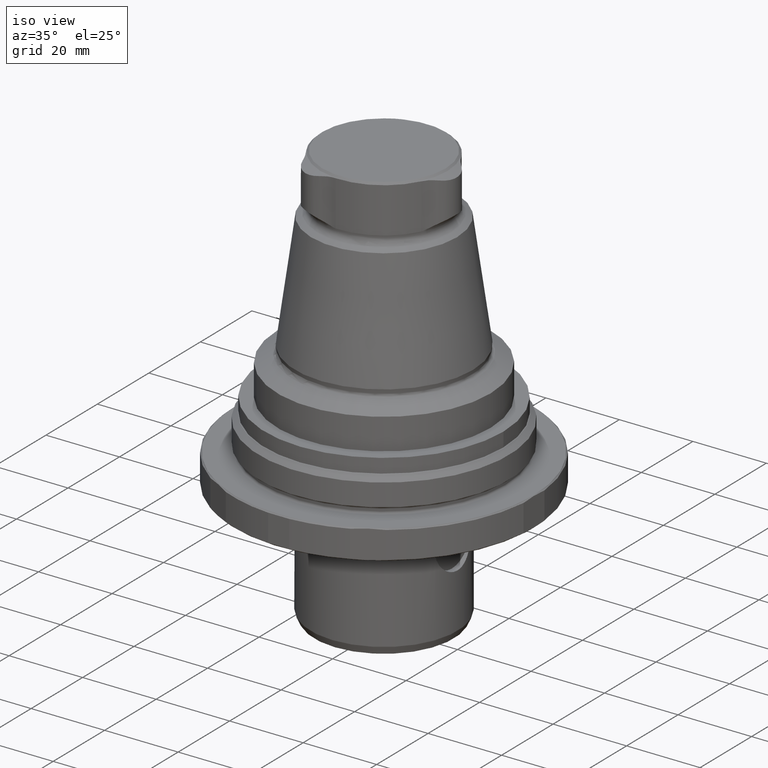
[diagram: clean part render]
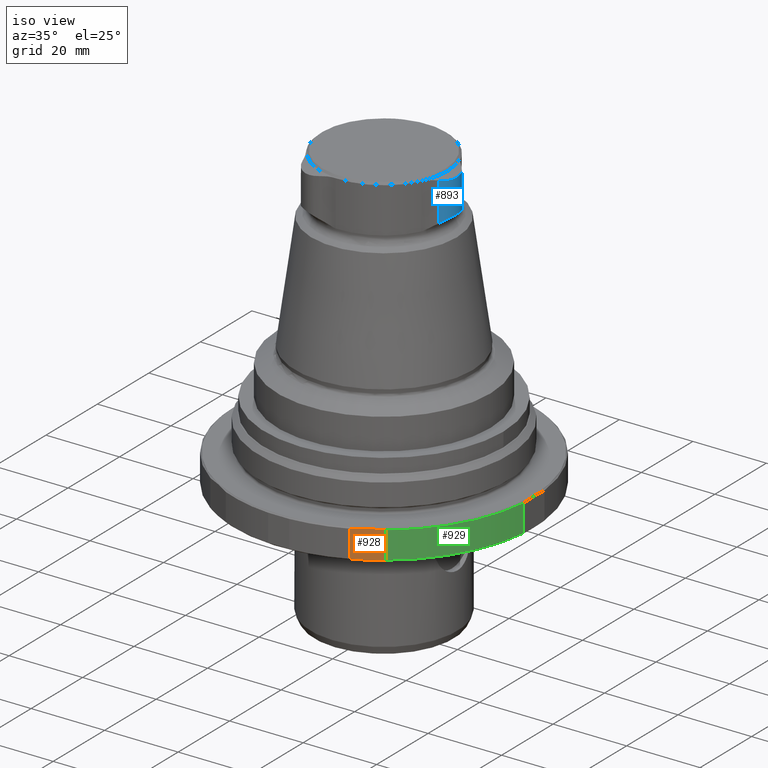
[diagram: same view with three faces highlighted in distinct colors, each labeled with its STEP entity id]
A machine part, iso view with three faces highlighted in distinct colors.
Their STEP definitions:

[orange] entity #928 — the highlighted planar face has unit normal (-0.5, 0.866, -0).
#38=LINE('',#1708,#66);
#39=LINE('',#1715,#67);
#66=VECTOR('',#1265,1000.);
#67=VECTOR('',#1268,1000.);
#101=PLANE('',#1048);
#325=ORIENTED_EDGE('',*,*,#501,.F.);
#326=ORIENTED_EDGE('',*,*,#502,.F.);
#327=ORIENTED_EDGE('',*,*,#503,.F.);
#328=ORIENTED_EDGE('',*,*,#485,.F.);
#485=EDGE_CURVE('',#593,#594,#653,.T.);
#501=EDGE_CURVE('',#608,#593,#38,.F.);
#502=EDGE_CURVE('',#609,#608,#660,.T.);
#503=EDGE_CURVE('',#594,#609,#39,.T.);
#593=VERTEX_POINT('',#1654);
#594=VERTEX_POINT('',#1659);
#608=VERTEX_POINT('',#1707);
#609=VERTEX_POINT('',#1714);
#653=B_SPLINE_CURVE_WITH_KNOTS('',3,(#1655,#1656,#1657,#1658),
 .UNSPECIFIED.,.F.,.F.,(4,4),(0.00557144708641946,0.0136408878602545),
 .UNSPECIFIED.);
#660=B_SPLINE_CURVE_WITH_KNOTS('',3,(#1710,#1711,#1712,#1713),
 .UNSPECIFIED.,.F.,.F.,(4,4),(0.0141550941599224,0.0221911710009365),
 .UNSPECIFIED.);
#737=EDGE_LOOP('',(#325,#326,#327,#328));
#832=FACE_BOUND('',#737,.T.);
#928=ADVANCED_FACE('',(#832),#101,.F.);
#1048=AXIS2_PLACEMENT_3D('',#1709,#1266,#1267);
#1265=DIRECTION('',(-7.30126435159279E-33,-9.52839055771651E-18,-1.));
#1266=DIRECTION('',(-0.500000000000001,0.866025403784438,-8.25182828016226E-18));
#1267=DIRECTION('',(-7.30126435159279E-33,-9.52839055771651E-18,-1.));
#1268=DIRECTION('',(-7.30126435159279E-33,-9.52839055771651E-18,-1.));
#1654=CARTESIAN_POINT('',(16.8971440223727,-37.3562113160208,-1.3));
#1655=CARTESIAN_POINT('',(16.8971440223727,-37.3562113160208,-1.3));
#1656=CARTESIAN_POINT('',(19.2155409083335,-36.0176842498229,-1.03590210112194));
#1657=CARTESIAN_POINT('',(21.5731526377083,-34.6565164832237,-1.03461413755012));
#1658=CARTESIAN_POINT('',(23.9028559776274,-33.3114616327894,-1.3));
#1659=CARTESIAN_POINT('',(23.9028559776274,-33.3114616327894,-1.3));
#1707=CARTESIAN_POINT('',(16.8971440223727,-37.3562113160207,-8.70000000000001));
#1708=CARTESIAN_POINT('',(16.8971440223727,-37.3562113160208,-1.00000000000001));
#1709=CARTESIAN_POINT('',(20.4,-35.3338364744051,-5.));
#1710=CARTESIAN_POINT('',(23.9028559776274,-33.3114616327895,-8.7));
#1711=CARTESIAN_POINT('',(21.5731526377083,-34.6565164832237,-8.96538586244987));
#1712=CARTESIAN_POINT('',(19.2155409083335,-36.0176842498229,-8.96409789887805));
#1713=CARTESIAN_POINT('',(16.8971440223727,-37.3562113160207,-8.7));
#1714=CARTESIAN_POINT('',(23.9028559776274,-33.3114616327895,-8.70000000000003));
#1715=CARTESIAN_POINT('',(23.9028559776274,-33.3114616327894,-1.00000000000001));

[blue] entity #893 — the highlighted cylindrical surface (edge-blend (fillet) strip) has radius 6.35 mm, axis along (0, 0, 1).
#27=LINE('',#1427,#55);
#28=LINE('',#1438,#56);
#55=VECTOR('',#1114,1000.);
#56=VECTOR('',#1115,1000.);
#182=ORIENTED_EDGE('',*,*,#424,.T.);
#183=ORIENTED_EDGE('',*,*,#425,.F.);
#184=ORIENTED_EDGE('',*,*,#426,.F.);
#185=ORIENTED_EDGE('',*,*,#427,.F.);
#424=EDGE_CURVE('',#547,#548,#27,.T.);
#425=EDGE_CURVE('',#549,#548,#630,.T.);
#426=EDGE_CURVE('',#550,#549,#28,.T.);
#427=EDGE_CURVE('',#547,#550,#631,.T.);
#547=VERTEX_POINT('',#1428);
#548=VERTEX_POINT('',#1429);
#549=VERTEX_POINT('',#1437);
#550=VERTEX_POINT('',#1439);
#630=B_SPLINE_CURVE_WITH_KNOTS('',3,(#1430,#1431,#1432,#1433,#1434,#1435,
#1436),.UNSPECIFIED.,.F.,.F.,(4,1,1,1,4),(2.84118447355397E-7,0.00249934494895464,
0.00499840577946193,0.00749746660996922,0.00999652744047651),
 .UNSPECIFIED.);
#631=B_SPLINE_CURVE_WITH_KNOTS('',3,(#1440,#1441,#1442,#1443,#1444,#1445,
#1446),.UNSPECIFIED.,.F.,.F.,(4,1,1,1,4),(3.04578262084422E-7,0.00256285858797735,
0.00512541259769261,0.00768796660740787,0.0102505206171231),
 .UNSPECIFIED.);
#682=EDGE_LOOP('',(#182,#183,#184,#185));
#777=FACE_BOUND('',#682,.T.);
#860=CYLINDRICAL_SURFACE('',#977,6.35);
#893=ADVANCED_FACE('',(#777),#860,.T.);
#977=AXIS2_PLACEMENT_3D('',#1426,#1112,#1113);
#1112=DIRECTION('',(0.,0.,1.));
#1113=DIRECTION('',(1.,-6.12303176911189E-17,0.));
#1114=DIRECTION('',(0.,0.,1.));
#1115=DIRECTION('',(0.,0.,1.));
#1426=CARTESIAN_POINT('',(13.45,-8.23547772984548E-16,-46.0210065492642));
#1427=CARTESIAN_POINT('',(17.9347568081611,4.49549289529549,-46.0210065492642));
#1428=CARTESIAN_POINT('',(17.9347568081611,4.49549289529549,61.4315662257756));
#1429=CARTESIAN_POINT('',(17.9347568081611,4.49549289529549,72.0597450497322));
#1430=CARTESIAN_POINT('',(17.9347568081611,-4.49549289529549,72.0597450497322));
#1431=CARTESIAN_POINT('',(18.5225614419484,-3.90909205012795,71.9041148537236));
#1432=CARTESIAN_POINT('',(19.4610857320775,-2.51303377295624,71.6659090895393));
#1433=CARTESIAN_POINT('',(19.9685709394265,-0.00183002506946202,71.5414607556683));
#1434=CARTESIAN_POINT('',(19.4646276304976,2.50554054900793,71.6650186576712));
#1435=CARTESIAN_POINT('',(18.5226164935731,3.9090371299769,71.9041002779706));
#1436=CARTESIAN_POINT('',(17.9347568081611,4.49549289529549,72.0597450497322));
#1437=CARTESIAN_POINT('',(17.9347568081611,-4.4954928952955,72.0597450497322));
#1438=CARTESIAN_POINT('',(17.9347568081611,-4.4954928952955,-46.0210065492642));
#1439=CARTESIAN_POINT('',(17.9347568081611,-4.4954928952955,61.4315662257756));
#1440=CARTESIAN_POINT('',(17.9347568081611,4.49549289529549,61.4315662257756));
#1441=CARTESIAN_POINT('',(18.4970090568549,3.93458341129388,61.7747602538548));
#1442=CARTESIAN_POINT('',(19.4388730983976,2.57204054174551,62.3270238816747));
#1443=CARTESIAN_POINT('',(19.9795754100358,0.00658735192789072,62.6326113282816));
#1444=CARTESIAN_POINT('',(19.442811798377,-2.5663604837447,62.3293050802985));
#1445=CARTESIAN_POINT('',(18.4973020928328,-3.93429107514128,61.774939120543));
#1446=CARTESIAN_POINT('',(17.9347568081611,-4.49549289529549,61.4315662257756));

[green] entity #929 — the highlighted cylindrical surface (partial cylindrical patch) has radius 41 mm, axis along (-0, -0, -1).
#39=LINE('',#1715,#67);
#40=LINE('',#1719,#68);
#67=VECTOR('',#1268,1000.);
#68=VECTOR('',#1273,1000.);
#147=CIRCLE('',#1039,41.);
#155=CIRCLE('',#1050,41.);
#329=ORIENTED_EDGE('',*,*,#504,.F.);
#330=ORIENTED_EDGE('',*,*,#505,.T.);
#331=ORIENTED_EDGE('',*,*,#486,.T.);
#332=ORIENTED_EDGE('',*,*,#503,.T.);
#486=EDGE_CURVE('',#595,#594,#147,.T.);
#503=EDGE_CURVE('',#594,#609,#39,.T.);
#504=EDGE_CURVE('',#610,#609,#155,.T.);
#505=EDGE_CURVE('',#610,#595,#40,.F.);
#594=VERTEX_POINT('',#1659);
#595=VERTEX_POINT('',#1661);
#609=VERTEX_POINT('',#1714);
#610=VERTEX_POINT('',#1718);
#738=EDGE_LOOP('',(#329,#330,#331,#332));
#833=FACE_BOUND('',#738,.T.);
#876=CYLINDRICAL_SURFACE('',#1049,41.);
#929=ADVANCED_FACE('',(#833),#876,.T.);
#1039=AXIS2_PLACEMENT_3D('',#1660,#1246,#1247);
#1049=AXIS2_PLACEMENT_3D('',#1716,#1269,#1270);
#1050=AXIS2_PLACEMENT_3D('',#1717,#1271,#1272);
#1246=DIRECTION('',(-7.30126435159279E-33,-9.52839055771651E-18,-1.));
#1247=DIRECTION('',(-1.,-8.32667268468868E-17,2.89465139560709E-33));
#1268=DIRECTION('',(-7.30126435159279E-33,-9.52839055771651E-18,-1.));
#1269=DIRECTION('',(-7.30126435159279E-33,-9.52839055771651E-18,-1.));
#1270=DIRECTION('',(-1.,-8.32667268468868E-17,2.89465139560709E-33));
#1271=DIRECTION('',(-7.30126435159279E-33,-9.52839055771651E-18,-1.));
#1272=DIRECTION('',(-1.,-8.32667268468868E-17,2.89465139560709E-33));
#1273=DIRECTION('',(-7.30126435159279E-33,-9.52839055771651E-18,-1.));
#1659=CARTESIAN_POINT('',(23.9028559776274,-33.3114616327894,-1.3));
#1660=CARTESIAN_POINT('',(7.88665112559661E-15,-9.43310665213939E-17,-1.3));
#1661=CARTESIAN_POINT('',(40.8,-4.04474968323131,-1.3));
#1714=CARTESIAN_POINT('',(23.9028559776274,-33.3114616327895,-8.70000000000003));
#1715=CARTESIAN_POINT('',(23.9028559776274,-33.3114616327894,-1.00000000000001));
#1716=CARTESIAN_POINT('',(7.88665112559661E-15,-9.1472549354079E-17,-1.00000000000001));
#1717=CARTESIAN_POINT('',(7.88665112559661E-15,-1.64841156648496E-16,-8.70000000000001));
#1718=CARTESIAN_POINT('',(40.8,-4.04474968323126,-8.70000000000001));
#1719=CARTESIAN_POINT('',(40.8,-4.04474968323131,-1.00000000000001));